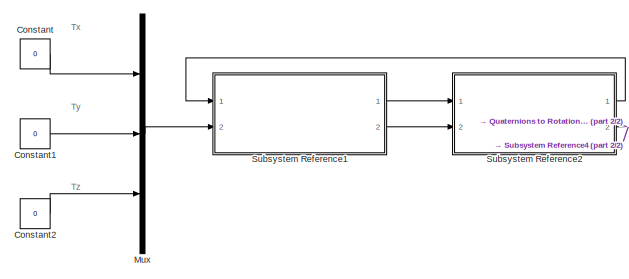
[diagram: root canvas - part 1/2, top left region]
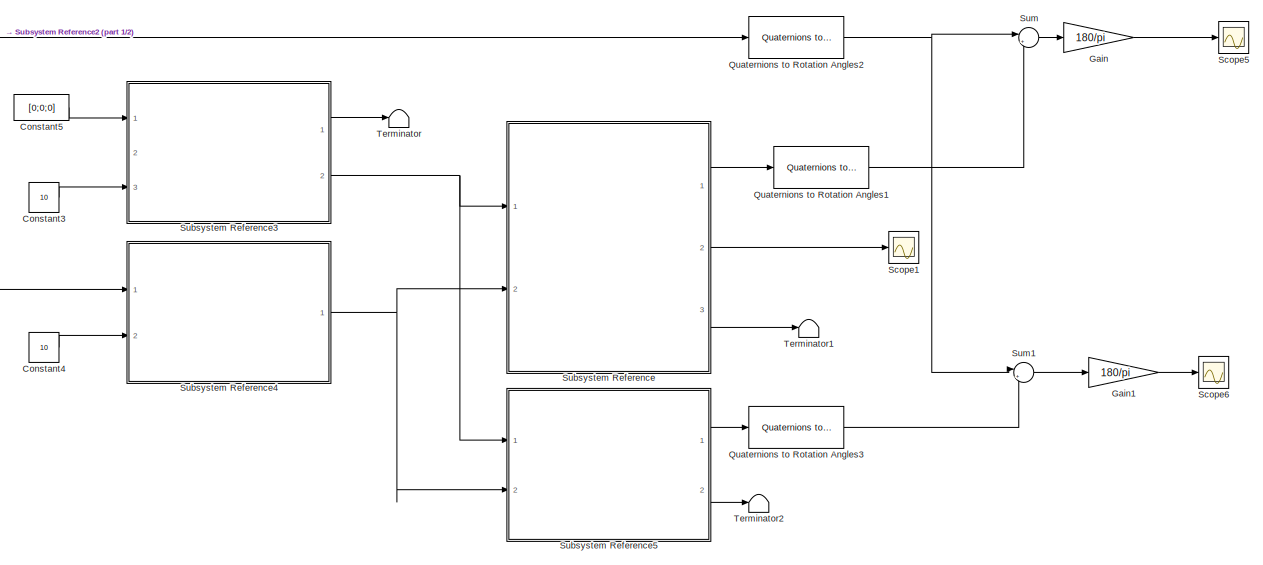
[diagram: root canvas - part 2/2, right side, full height]
MODEL slx_f8ed76fe41be
KIND model
CONFIG AbsTol = auto
CONFIG EnableMultiTasking = off
CONFIG FixedStep = auto
CONFIG MaxStep = auto
CONFIG MinStep = auto
CONFIG RelTol = 1e-3
CONFIG SampleTimeConstraint = Unconstrained
CONFIG SolverName = VariableStepAuto
CONFIG StartTime = 0.0
CONFIG StopTime = 1000
BLOCK [Constant] Constant
  Value = 0
BLOCK [Constant] Constant1
  Value = 0
BLOCK [Constant] Constant2
  Value = 0
BLOCK [Constant] Constant3
  Value = 10
BLOCK [Constant] Constant4
  Value = 10
BLOCK [Constant] Constant5
  Value = [0;0;0]
BLOCK [Gain] Gain
  Gain = 180/pi
BLOCK [Gain] Gain1
  Gain = 180/pi
BLOCK [Mux] Mux
  DisplayOption = bar
  Inputs = 3
  Ports = [3, 1]
BLOCK [Reference] Quaternions to Rotation Angles1  REF=sharedtransform/Quaternions to Rotation Angles
  AttributesFormatString = Rotation Order: %<rotationOrder>
  Ports = [1, 1]
  SourceBlock = sharedtransform/Quaternions to Rotation Angles
  SourceProductBaseCode = AE,PW,DR,MT,UV,VE
  SourceType = Quat2Ang
BLOCK [Reference] Quaternions to Rotation Angles2  REF=sharedtransform/Quaternions to Rotation Angles
  AttributesFormatString = Rotation Order: %<rotationOrder>
  Ports = [1, 1]
  SourceBlock = sharedtransform/Quaternions to Rotation Angles
  SourceProductBaseCode = AE,PW,DR,MT,UV,VE
  SourceType = Quat2Ang
BLOCK [Reference] Quaternions to Rotation Angles3  REF=sharedtransform/Quaternions to Rotation Angles
  AttributesFormatString = Rotation Order: %<rotationOrder>
  Ports = [1, 1]
  SourceBlock = sharedtransform/Quaternions to Rotation Angles
  SourceProductBaseCode = AE,PW,DR,MT,UV,VE
  SourceType = Quat2Ang
BLOCK [Scope] Scope1
  Floating = off
  NumInputPorts = 1
  Ports = [1]
  ScopeSpecificationString = Simulink.scopes.TimeScopeBlockCfg('CurrentConfiguration', extmgr.ConfigurationSet(extmgr.Configuration('Core','General UI',true),extmgr.Configuration('Core','Source UI',true),extmgr.Configuration('Sources','WiredSimulink',true,'DataLoggingVariableName','ScopeData2'),extmgr.Configuration('Visuals','Time Domain',true,'SerializedDisplays',{struct('MinYLimReal','0.00309','MaxYLimReal','0.00342','YLabe...<+1532ch>
BLOCK [Scope] Scope5
  Floating = off
  NumInputPorts = 1
  Ports = [1]
  ScopeSpecificationString = Simulink.scopes.TimeScopeBlockCfg('CurrentConfiguration', extmgr.ConfigurationSet(extmgr.Configuration('Core','General UI',true),extmgr.Configuration('Core','Source UI',true),extmgr.Configuration('Sources','WiredSimulink',true,'DataLoggingVariableName','ScopeData3'),extmgr.Configuration('Visuals','Time Domain',true,'SerializedDisplays',{struct('MinYLimReal','-0.00718','MaxYLimReal','0.00366','YLab...<+1482ch>
BLOCK [Scope] Scope6
  Floating = off
  NumInputPorts = 1
  Ports = [1]
  ScopeSpecificationString = Simulink.scopes.TimeScopeBlockCfg('CurrentConfiguration', extmgr.ConfigurationSet(extmgr.Configuration('Core','General UI',true),extmgr.Configuration('Core','Source UI',true),extmgr.Configuration('Sources','WiredSimulink',true,'DataLoggingVariableName','ScopeData3'),extmgr.Configuration('Visuals','Time Domain',true,'SerializedDisplays',{struct('MinYLimReal','-0.02412','MaxYLimReal','0.01514','YLab...<+1407ch>
BLOCK [SubSystem] Subsystem Reference
  Ports = [2, 3]
  ReferencedSubsystem = Gyrostellar_KF
  RequestExecContextInheritance = off
BLOCK [SubSystem] Subsystem Reference1
  Ports = [2, 2]
  ReferencedSubsystem = Dynamics
  RequestExecContextInheritance = off
BLOCK [SubSystem] Subsystem Reference2
  Ports = [2, 2]
  ReferencedSubsystem = Kinematics
  RequestExecContextInheritance = off
BLOCK [SubSystem] Subsystem Reference3
  Ports = [3, 2]
  ReferencedSubsystem = IMU
  RequestExecContextInheritance = off
BLOCK [SubSystem] Subsystem Reference4
  Ports = [2, 1]
  ReferencedSubsystem = StarTracker
  RequestExecContextInheritance = off
BLOCK [SubSystem] Subsystem Reference5
  Ports = [2, 2]
  ReferencedSubsystem = NavigationSolution
  RequestExecContextInheritance = off
BLOCK [Sum] Sum
  Inputs = |+-
  Ports = [2, 1]
BLOCK [Sum] Sum1
  Inputs = |+-
  Ports = [2, 1]
BLOCK [Terminator] Terminator
BLOCK [Terminator] Terminator1
BLOCK [Terminator] Terminator2
ANNOTATION (root): Tx
ANNOTATION (root): Ty
ANNOTATION (root): Tz
LINE Constant1:1 -> Mux:2
LINE Constant2:1 -> Mux:3
LINE Constant3:1 -> Subsystem Reference3:3
LINE Constant4:1 -> Subsystem Reference4:2
LINE Constant5:1 -> Subsystem Reference3:1
LINE Constant:1 -> Mux:1
LINE Gain1:1 -> Scope6:1
LINE Gain:1 -> Scope5:1
LINE Mux:1 -> Subsystem Reference1:2
LINE Quaternions to Rotation Angles1:1 -> Sum:2
NET Quaternions to Rotation Angles2:1 -> Sum1:1, Sum:1
LINE Quaternions to Rotation Angles3:1 -> Sum1:2
LINE Subsystem Reference1:1 -> Subsystem Reference2:1
LINE Subsystem Reference1:2 -> Subsystem Reference2:2
LINE Subsystem Reference2:1 -> Subsystem Reference1:1
NET Subsystem Reference2:2 -> Quaternions to Rotation Angles2:1, Subsystem Reference4:1
LINE Subsystem Reference3:1 -> Terminator:1
NET Subsystem Reference3:2 -> Subsystem Reference5:1, Subsystem Reference:1
NET Subsystem Reference4:1 -> Subsystem Reference5:2, Subsystem Reference:2
LINE Subsystem Reference5:1 -> Quaternions to Rotation Angles3:1
LINE Subsystem Reference5:2 -> Terminator2:1
LINE Subsystem Reference:1 -> Quaternions to Rotation Angles1:1
LINE Subsystem Reference:2 -> Scope1:1
LINE Subsystem Reference:3 -> Terminator1:1
LINE Sum1:1 -> Gain1:1
LINE Sum:1 -> Gain:1
note: NET lines group one-source signal fan-out (src -> all destinations, sorted); 1:1 wires keep LINE
